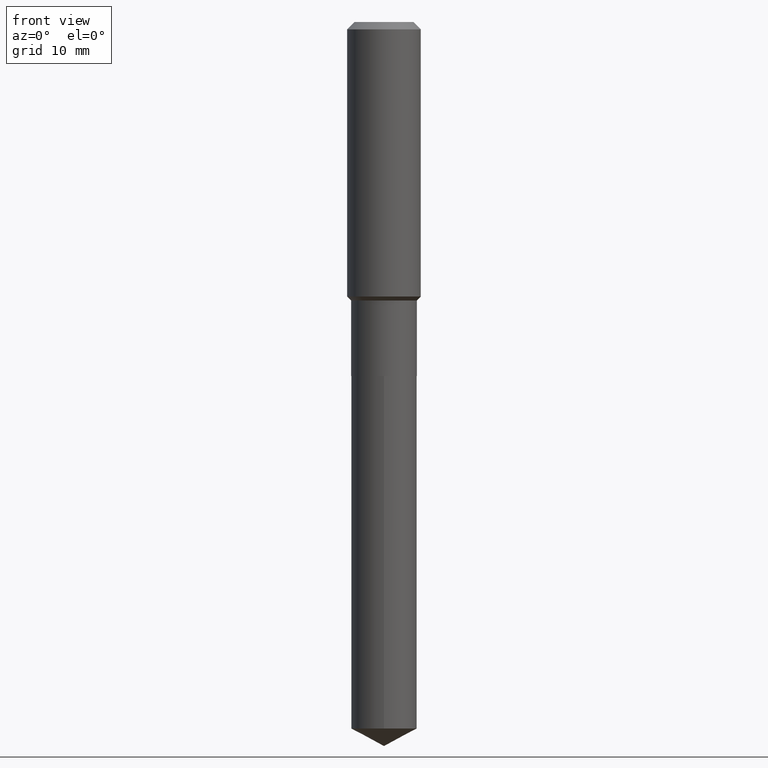
[diagram: clean part render]
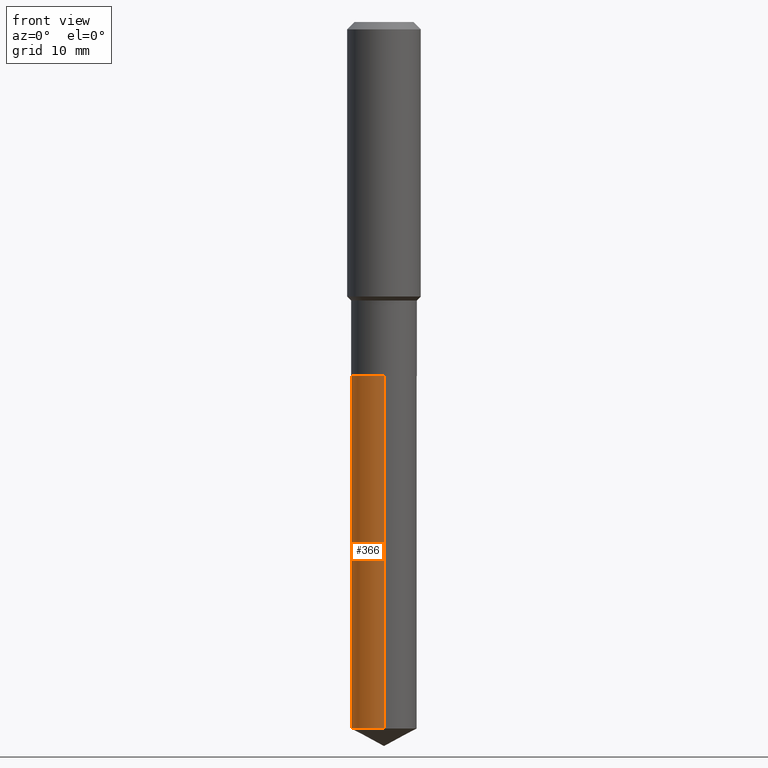
[diagram: same view with one face highlighted and labeled with its STEP entity id]
A machine part, front view. The second image highlights one B-rep face of the part: STEP entity #366.
In plain terms, the highlighted cylindrical surface (edge-blend (fillet) strip) has radius 5.3505 mm, axis along (-0, 0, 1).
Its self-contained STEP definition (entity closure, byte-faithful):
#1 = DIRECTION ( 'NONE',  ( -2.445449885251716834E-29, 3.491508434696715420E-15, 1.000000000000000000 ) ) ;
#6 = CARTESIAN_POINT ( 'NONE',  ( -1.470961088054556343E-15, -0.2106500000000079420, -2.271699999999998720 ) ) ;
#14 = ORIENTED_EDGE ( 'NONE', *, *, #76, .T. ) ;
#29 = AXIS2_PLACEMENT_3D ( 'NONE', #218, #339, #45 ) ;
#38 = EDGE_CURVE ( 'NONE', #367, #83, #404, .T. ) ;
#45 = DIRECTION ( 'NONE',  ( -6.982962677686265922E-15, -1.000000000000000000, 2.593731776562319814E-15 ) ) ;
#49 = EDGE_LOOP ( 'NONE', ( #468, #235, #14, #146 ) ) ;
#53 = DIRECTION ( 'NONE',  ( -2.445449885251716553E-29, 3.491508434696715420E-15, 1.000000000000000000 ) ) ;
#68 = CIRCLE ( 'NONE', #29, 0.2106500000000000039 ) ;
#73 = DIRECTION ( 'NONE',  ( -6.982962677686265922E-15, -1.000000000000000000, 3.890597664843479129E-15 ) ) ;
#76 = EDGE_CURVE ( 'NONE', #373, #83, #425, .T. ) ;
#83 = VERTEX_POINT ( 'NONE', #6 ) ;
#105 = DIRECTION ( 'NONE',  ( -2.445449885251716553E-29, 3.491508434696715420E-15, 1.000000000000000000 ) ) ;
#124 = LINE ( 'NONE', #237, #156 ) ;
#138 = EDGE_CURVE ( 'NONE', #382, #373, #68, .T. ) ;
#146 = ORIENTED_EDGE ( 'NONE', *, *, #38, .F. ) ;
#156 = VECTOR ( 'NONE', #53, 39.37007874015748143 ) ;
#175 = CARTESIAN_POINT ( 'NONE',  ( 1.496758272878761510E-15, 0.2106499999999841555, -4.533695408220510537 ) ) ;
#208 = AXIS2_PLACEMENT_3D ( 'NONE', #379, #1, #306 ) ;
#218 = CARTESIAN_POINT ( 'NONE',  ( 1.108696789848353068E-28, -1.582937420449712200E-14, -4.533695408220509648 ) ) ;
#235 = ORIENTED_EDGE ( 'NONE', *, *, #138, .T. ) ;
#237 = CARTESIAN_POINT ( 'NONE',  ( 1.496758272878706487E-15, 0.2106499999999920936, -2.271700000000000053 ) ) ;
#258 = CARTESIAN_POINT ( 'NONE',  ( -1.470961088054556343E-15, -0.2106500000000079420, -2.271699999999998720 ) ) ;
#292 = FACE_OUTER_BOUND ( 'NONE', #49, .T. ) ;
#293 = EDGE_CURVE ( 'NONE', #382, #367, #124, .T. ) ;
#302 = CARTESIAN_POINT ( 'NONE',  ( 5.555371487010773044E-29, -7.931598157449970914E-15, -2.271699999999999608 ) ) ;
#306 = DIRECTION ( 'NONE',  ( -6.982962677686265922E-15, -1.000000000000000000, 3.890597664843479129E-15 ) ) ;
#325 = CYLINDRICAL_SURFACE ( 'NONE', #345, 0.2106500000000000039 ) ;
#335 = DIRECTION ( 'NONE',  ( -2.445449885251716834E-29, 3.491508434696715420E-15, 1.000000000000000000 ) ) ;
#339 = DIRECTION ( 'NONE',  ( -2.445449885251716834E-29, 3.491508434696715420E-15, 1.000000000000000000 ) ) ;
#345 = AXIS2_PLACEMENT_3D ( 'NONE', #302, #335, #73 ) ;
#366 = ADVANCED_FACE ( 'NONE', ( #292 ), #325, .T. ) ;
#367 = VERTEX_POINT ( 'NONE', #375 ) ;
#373 = VERTEX_POINT ( 'NONE', #415 ) ;
#375 = CARTESIAN_POINT ( 'NONE',  ( 1.496758272878762299E-15, 0.2106499999999920936, -2.271700000000000053 ) ) ;
#379 = CARTESIAN_POINT ( 'NONE',  ( 5.555371487010773044E-29, -7.931598157449970914E-15, -2.271699999999999608 ) ) ;
#382 = VERTEX_POINT ( 'NONE', #175 ) ;
#396 = VECTOR ( 'NONE', #105, 39.37007874015748143 ) ;
#404 = CIRCLE ( 'NONE', #208, 0.2106500000000000039 ) ;
#415 = CARTESIAN_POINT ( 'NONE',  ( -1.470961088054501123E-15, -0.2106500000000158246, -4.533695408220509648 ) ) ;
#425 = LINE ( 'NONE', #258, #396 ) ;
#468 = ORIENTED_EDGE ( 'NONE', *, *, #293, .F. ) ;